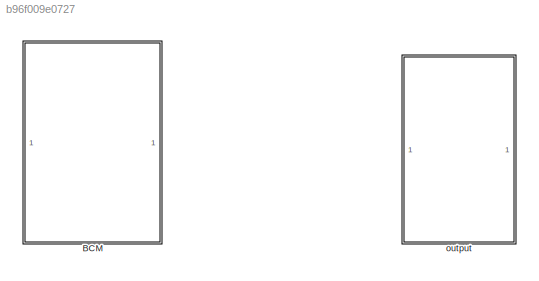
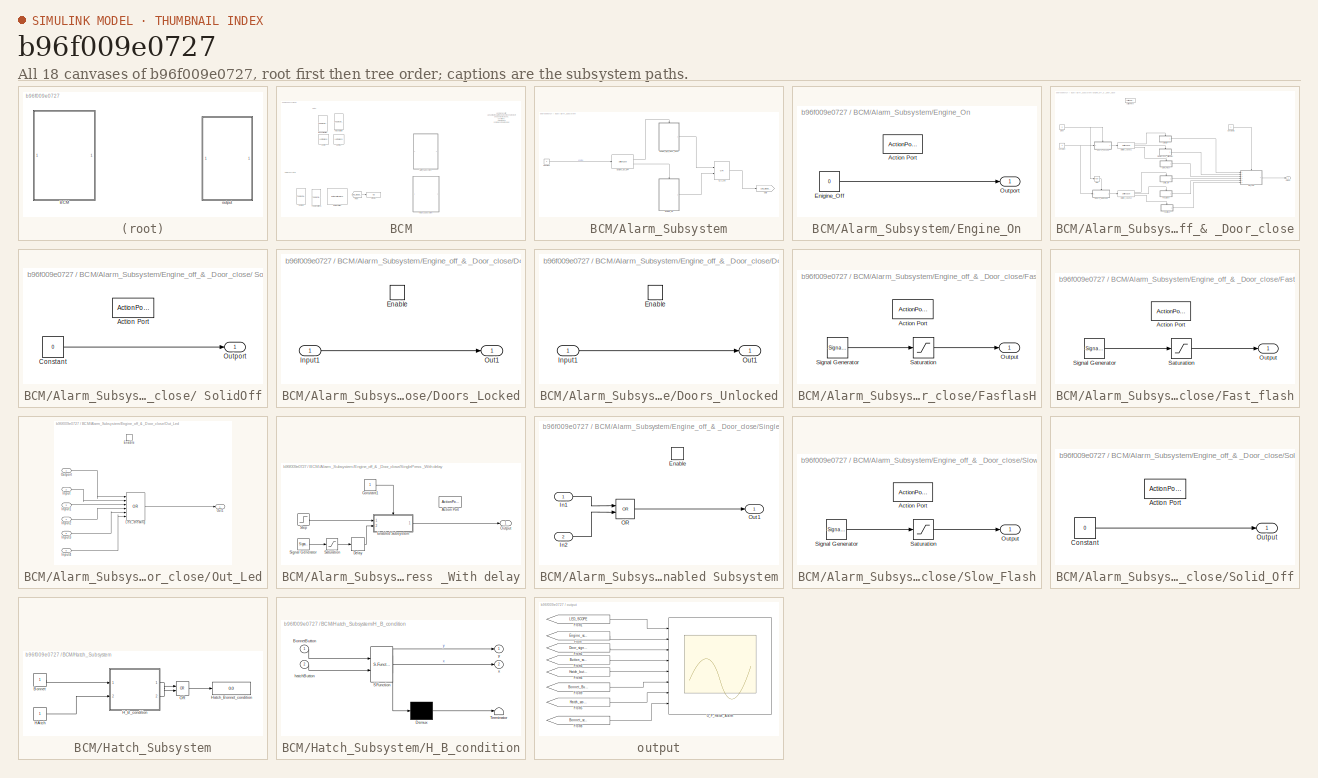
[diagram: thumbnail index - all 18 canvases of the model, root first then tree order]
MODEL slx_b96f009e0727
KIND model
CONFIG AbsTol = auto
CONFIG EnableMultiTasking = off
CONFIG FixedStep = auto
CONFIG MaxStep = auto
CONFIG MinStep = auto
CONFIG RelTol = 1e-3
CONFIG SampleTimeConstraint = Unconstrained
CONFIG SolverName = VariableStepAuto
CONFIG StartTime = 0.0
CONFIG StopTime = inf
BLOCK [SubSystem] BCM
  Ports = []
  RequestExecContextInheritance = off
BLOCK [SubSystem] BCM/Alarm_Subsystem
  Ports = []
  RequestExecContextInheritance = off
BLOCK [Constant] BCM/Alarm_Subsystem/Constant
  Value = 0
BLOCK [SubSystem] BCM/Alarm_Subsystem/Engine_On
  Ports = [0, 1, 0, 0, 0, 0, 0, 1]
  RequestExecContextInheritance = off
  TreatAsAtomicUnit = on
BLOCK [ActionPort] BCM/Alarm_Subsystem/Engine_On/Action Port
  ActionPortLabel = case [ 1 ]:
BLOCK [Constant] BCM/Alarm_Subsystem/Engine_On/Enigine_Off
  Value = 0
BLOCK [Outport] BCM/Alarm_Subsystem/Engine_On/Outport
BLOCK [SwitchCase] BCM/Alarm_Subsystem/Engine_On_OFF
  CaseConditions = {0,1}
  Ports = [1, 2]
  ShowDefaultCase = off
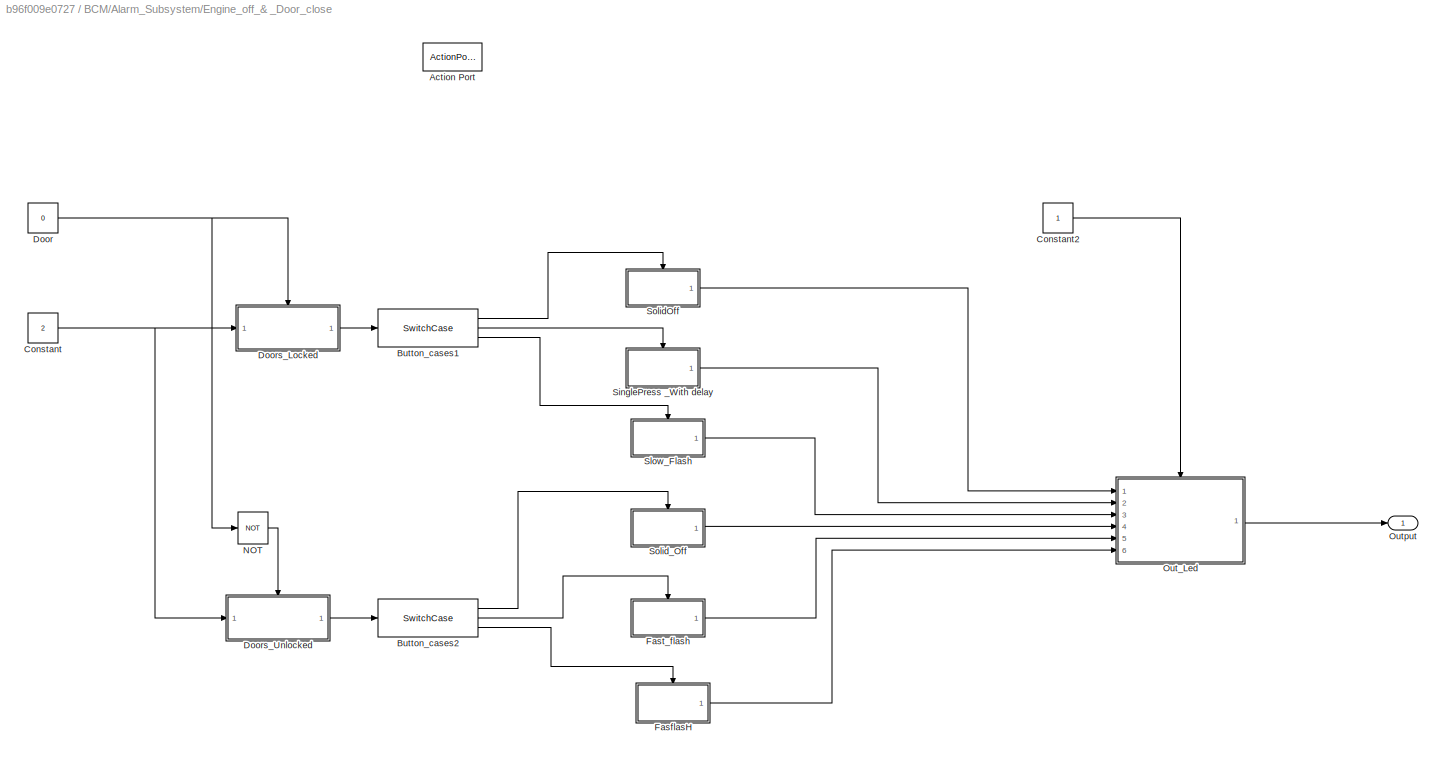
BLOCK [SubSystem] BCM/Alarm_Subsystem/Engine_off_& _Door_close
  Ports = [0, 1, 0, 0, 0, 0, 0, 1]
  RequestExecContextInheritance = off
  TreatAsAtomicUnit = on
BLOCK [SubSystem] BCM/Alarm_Subsystem/Engine_off_& _Door_close/ SolidOff
  Ports = [0, 1, 0, 0, 0, 0, 0, 1]
  RequestExecContextInheritance = off
  TreatAsAtomicUnit = on
BLOCK [ActionPort] BCM/Alarm_Subsystem/Engine_off_& _Door_close/ SolidOff/Action Port
  ActionPortLabel = case [ 0 ]:
BLOCK [Constant] BCM/Alarm_Subsystem/Engine_off_& _Door_close/ SolidOff/Constant
  Value = 0
BLOCK [Outport] BCM/Alarm_Subsystem/Engine_off_& _Door_close/ SolidOff/Outport
BLOCK [ActionPort] BCM/Alarm_Subsystem/Engine_off_& _Door_close/Action Port
  ActionPortLabel = case [ 0 ]:
BLOCK [SwitchCase] BCM/Alarm_Subsystem/Engine_off_& _Door_close/Button_cases1
  CaseConditions = {0,1,2}
  Ports = [1, 3]
  ShowDefaultCase = off
BLOCK [SwitchCase] BCM/Alarm_Subsystem/Engine_off_& _Door_close/Button_cases2
  CaseConditions = {0,1,2}
  Ports = [1, 3]
  ShowDefaultCase = off
BLOCK [Constant] BCM/Alarm_Subsystem/Engine_off_& _Door_close/Constant
  Value = 2
BLOCK [Constant] BCM/Alarm_Subsystem/Engine_off_& _Door_close/Constant2
BLOCK [Constant] BCM/Alarm_Subsystem/Engine_off_& _Door_close/Door
  Value = 0
BLOCK [SubSystem] BCM/Alarm_Subsystem/Engine_off_& _Door_close/Doors_Locked
  Ports = [1, 1, 1]
  RequestExecContextInheritance = off
  TreatAsAtomicUnit = on
BLOCK [EnablePort] BCM/Alarm_Subsystem/Engine_off_& _Door_close/Doors_Locked/Enable
  Ports = []
BLOCK [Inport] BCM/Alarm_Subsystem/Engine_off_& _Door_close/Doors_Locked/Input1
BLOCK [Outport] BCM/Alarm_Subsystem/Engine_off_& _Door_close/Doors_Locked/Out1
BLOCK [SubSystem] BCM/Alarm_Subsystem/Engine_off_& _Door_close/Doors_Unlocked
  Ports = [1, 1, 1]
  RequestExecContextInheritance = off
  TreatAsAtomicUnit = on
BLOCK [EnablePort] BCM/Alarm_Subsystem/Engine_off_& _Door_close/Doors_Unlocked/Enable
  Ports = []
BLOCK [Inport] BCM/Alarm_Subsystem/Engine_off_& _Door_close/Doors_Unlocked/Input1
BLOCK [Outport] BCM/Alarm_Subsystem/Engine_off_& _Door_close/Doors_Unlocked/Out1
BLOCK [SubSystem] BCM/Alarm_Subsystem/Engine_off_& _Door_close/FasflasH
  Ports = [0, 1, 0, 0, 0, 0, 0, 1]
  RequestExecContextInheritance = off
  TreatAsAtomicUnit = on
BLOCK [ActionPort] BCM/Alarm_Subsystem/Engine_off_& _Door_close/FasflasH/Action Port
  ActionPortLabel = case [ 2 ]:
BLOCK [Outport] BCM/Alarm_Subsystem/Engine_off_& _Door_close/FasflasH/Output
BLOCK [Saturate] BCM/Alarm_Subsystem/Engine_off_& _Door_close/FasflasH/Saturation
  LowerLimit = 0
  UpperLimit = 1
BLOCK [SignalGenerator] BCM/Alarm_Subsystem/Engine_off_& _Door_close/FasflasH/Signal Generator
  Ports = [0, 1]
BLOCK [SubSystem] BCM/Alarm_Subsystem/Engine_off_& _Door_close/Fast_flash
  Ports = [0, 1, 0, 0, 0, 0, 0, 1]
  RequestExecContextInheritance = off
  TreatAsAtomicUnit = on
BLOCK [ActionPort] BCM/Alarm_Subsystem/Engine_off_& _Door_close/Fast_flash/Action Port
  ActionPortLabel = case [ 1 ]:
BLOCK [Outport] BCM/Alarm_Subsystem/Engine_off_& _Door_close/Fast_flash/Output
BLOCK [Saturate] BCM/Alarm_Subsystem/Engine_off_& _Door_close/Fast_flash/Saturation
  LowerLimit = 0
  UpperLimit = 1
BLOCK [SignalGenerator] BCM/Alarm_Subsystem/Engine_off_& _Door_close/Fast_flash/Signal Generator
  Ports = [0, 1]
  WaveForm = square
BLOCK [Logic] BCM/Alarm_Subsystem/Engine_off_& _Door_close/NOT
  AllPortsSameDT = off
  IconShape = distinctive
  Operator = NOT
  OutDataTypeStr = boolean
  Ports = [1, 1]
BLOCK [SubSystem] BCM/Alarm_Subsystem/Engine_off_& _Door_close/Out_Led
  Ports = [6, 1, 1]
  RequestExecContextInheritance = off
  TreatAsAtomicUnit = on
BLOCK [EnablePort] BCM/Alarm_Subsystem/Engine_off_& _Door_close/Out_Led/Enable
  Ports = []
BLOCK [Inport] BCM/Alarm_Subsystem/Engine_off_& _Door_close/Out_Led/Input
  Port = 2
BLOCK [Inport] BCM/Alarm_Subsystem/Engine_off_& _Door_close/Out_Led/Input1
  Port = 3
BLOCK [Inport] BCM/Alarm_Subsystem/Engine_off_& _Door_close/Out_Led/Input2
  Port = 4
BLOCK [Inport] BCM/Alarm_Subsystem/Engine_off_& _Door_close/Out_Led/Input3
  Port = 5
BLOCK [Inport] BCM/Alarm_Subsystem/Engine_off_& _Door_close/Out_Led/Input4
  Port = 6
BLOCK [Logic] BCM/Alarm_Subsystem/Engine_off_& _Door_close/Out_Led/Led_checking
  AllPortsSameDT = off
  IconShape = distinctive
  Inputs = 6
  Operator = OR
  OutDataTypeStr = boolean
  Ports = [6, 1]
BLOCK [Outport] BCM/Alarm_Subsystem/Engine_off_& _Door_close/Out_Led/Out1
BLOCK [Inport] BCM/Alarm_Subsystem/Engine_off_& _Door_close/Out_Led/Outport
BLOCK [Outport] BCM/Alarm_Subsystem/Engine_off_& _Door_close/Output
BLOCK [SubSystem] BCM/Alarm_Subsystem/Engine_off_& _Door_close/SinglePress _With delay
  Ports = [0, 1, 0, 0, 0, 0, 0, 1]
  RequestExecContextInheritance = off
  TreatAsAtomicUnit = on
BLOCK [ActionPort] BCM/Alarm_Subsystem/Engine_off_& _Door_close/SinglePress _With delay/Action Port
  ActionPortLabel = case [ 1 ]:
BLOCK [Constant] BCM/Alarm_Subsystem/Engine_off_& _Door_close/SinglePress _With delay/Constant1
BLOCK [Delay] BCM/Alarm_Subsystem/Engine_off_& _Door_close/SinglePress _With delay/Delay
  DelayLength = 90
  InputPortMap = u0
  Ports = [1, 1]
BLOCK [SubSystem] BCM/Alarm_Subsystem/Engine_off_& _Door_close/SinglePress _With delay/Enabled Subsystem
  Ports = [2, 1, 1]
  RequestExecContextInheritance = off
  TreatAsAtomicUnit = on
BLOCK [EnablePort] BCM/Alarm_Subsystem/Engine_off_& _Door_close/SinglePress _With delay/Enabled Subsystem/Enable
  Ports = []
BLOCK [Inport] BCM/Alarm_Subsystem/Engine_off_& _Door_close/SinglePress _With delay/Enabled Subsystem/In1
BLOCK [Inport] BCM/Alarm_Subsystem/Engine_off_& _Door_close/SinglePress _With delay/Enabled Subsystem/In2
  Port = 2
BLOCK [Logic] BCM/Alarm_Subsystem/Engine_off_& _Door_close/SinglePress _With delay/Enabled Subsystem/OR
  AllPortsSameDT = off
  IconShape = distinctive
  Operator = OR
  OutDataTypeStr = boolean
  Ports = [2, 1]
BLOCK [Outport] BCM/Alarm_Subsystem/Engine_off_& _Door_close/SinglePress _With delay/Enabled Subsystem/Out1
BLOCK [Outport] BCM/Alarm_Subsystem/Engine_off_& _Door_close/SinglePress _With delay/Output
BLOCK [Saturate] BCM/Alarm_Subsystem/Engine_off_& _Door_close/SinglePress _With delay/Saturation
  LowerLimit = 0
  UpperLimit = 1
BLOCK [SignalGenerator] BCM/Alarm_Subsystem/Engine_off_& _Door_close/SinglePress _With delay/Signal Generator
  Frequency = 0.5
  Ports = [0, 1]
  WaveForm = square
BLOCK [Step] BCM/Alarm_Subsystem/Engine_off_& _Door_close/SinglePress _With delay/Step
  After = 0
  Before = 1
  SampleTime = 0
  Time = 30
BLOCK [SubSystem] BCM/Alarm_Subsystem/Engine_off_& _Door_close/Slow_Flash
  Ports = [0, 1, 0, 0, 0, 0, 0, 1]
  RequestExecContextInheritance = off
  TreatAsAtomicUnit = on
BLOCK [ActionPort] BCM/Alarm_Subsystem/Engine_off_& _Door_close/Slow_Flash/Action Port
  ActionPortLabel = case [ 2 ]:
BLOCK [Outport] BCM/Alarm_Subsystem/Engine_off_& _Door_close/Slow_Flash/Output
BLOCK [Saturate] BCM/Alarm_Subsystem/Engine_off_& _Door_close/Slow_Flash/Saturation
  LowerLimit = 0
  UpperLimit = 1
BLOCK [SignalGenerator] BCM/Alarm_Subsystem/Engine_off_& _Door_close/Slow_Flash/Signal Generator
  Frequency = 0.5
  Ports = [0, 1]
  WaveForm = square
BLOCK [SubSystem] BCM/Alarm_Subsystem/Engine_off_& _Door_close/Solid_Off
  Ports = [0, 1, 0, 0, 0, 0, 0, 1]
  RequestExecContextInheritance = off
  TreatAsAtomicUnit = on
BLOCK [ActionPort] BCM/Alarm_Subsystem/Engine_off_& _Door_close/Solid_Off/Action Port
  ActionPortLabel = case [ 0 ]:
BLOCK [Constant] BCM/Alarm_Subsystem/Engine_off_& _Door_close/Solid_Off/Constant
  Value = 0
BLOCK [Outport] BCM/Alarm_Subsystem/Engine_off_& _Door_close/Solid_Off/Output
BLOCK [Goto] BCM/Alarm_Subsystem/Goto
  GotoTag = Led_dispaly
  TagVisibility = global
BLOCK [Logic] BCM/Alarm_Subsystem/O_T_Led
  AllPortsSameDT = off
  IconShape = distinctive
  Operator = OR
  OutDataTypeStr = boolean
  Ports = [2, 1]
BLOCK [ToggleSwitchBlock] BCM/BonnetButton
BLOCK [Display] BCM/Display
  Decimation = 1
  Ports = [1]
BLOCK [From] BCM/From
  GotoTag = Led_dispaly
  TagVisibility = global
BLOCK [ToggleSwitchBlock] BCM/HatchButton
BLOCK [SubSystem] BCM/Hatch_Subsystem
  Ports = []
  RequestExecContextInheritance = off
BLOCK [Constant] BCM/Hatch_Subsystem/Bonnet
BLOCK [Constant] BCM/Hatch_Subsystem/HAtch
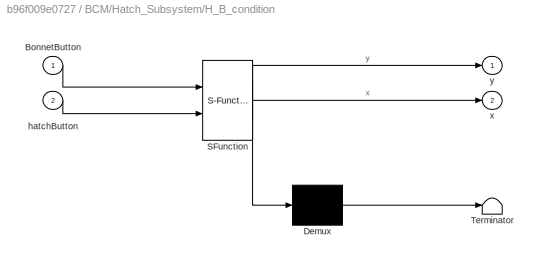
BLOCK [SubSystem] BCM/Hatch_Subsystem/H_B_condition
  ErrorFcn = Stateflow.Translate.translate
  PermitHierarchicalResolution = ExplicitOnly
  Ports = [2, 2]
  RequestExecContextInheritance = off
  SFBlockType = Chart
  TreatAsAtomicUnit = on
BLOCK [Demux] BCM/Hatch_Subsystem/H_B_condition/ Demux 
  Outputs = 1
  Ports = [1, 1]
BLOCK [S-Function] BCM/Hatch_Subsystem/H_B_condition/ SFunction 
  EnableBusSupport = on
  FunctionName = sf_sfun
  PortCounts = [2 3]
  Ports = [2, 3]
  SFcnIsStateOwnerBlock = off
  SFunctionDeploymentMode = off
  Tag = Stateflow S-Function 3
BLOCK [Terminator] BCM/Hatch_Subsystem/H_B_condition/ Terminator 
BLOCK [Inport] BCM/Hatch_Subsystem/H_B_condition/BonnetButton
BLOCK [Inport] BCM/Hatch_Subsystem/H_B_condition/hatchButton
  Port = 2
BLOCK [Outport] BCM/Hatch_Subsystem/H_B_condition/x
  Port = 2
BLOCK [Outport] BCM/Hatch_Subsystem/H_B_condition/y
BLOCK [Display] BCM/Hatch_Subsystem/Hatch_Bonnet_condition
  Decimation = 1
  Ports = [1]
BLOCK [Logic] BCM/Hatch_Subsystem/OR
  AllPortsSameDT = off
  IconShape = distinctive
  Operator = OR
  OutDataTypeStr = boolean
  Ports = [2, 1]
BLOCK [LampBlock] BCM/Lamp
BLOCK [LampBlock] BCM/Lamp1
BLOCK [RotarySwitchBlock] BCM/Rotary Switch
BLOCK [ToggleSwitchBlock] BCM/Toggle Switch1
BLOCK [ToggleSwitchBlock] BCM/engine
BLOCK [SubSystem] output
  Ports = []
  RequestExecContextInheritance = off
BLOCK [From] output/From
  GotoTag = Engine_scope
BLOCK [From] output/From1
  GotoTag = LED_SCOPE
BLOCK [From] output/From2
  GotoTag = Door_signal_Scope
BLOCK [From] output/From3
  GotoTag = Button_scope
BLOCK [From] output/From4
  GotoTag = Hatch_button
BLOCK [From] output/From5
  GotoTag = Hatch_scope
BLOCK [From] output/From8
  GotoTag = Bonnet_scope
BLOCK [From] output/From9
  GotoTag = Bonnet_Button
BLOCK [Scope] output/O_P_Hatch_Alarm
  Floating = off
  NumInputPorts = 8
  Ports = [8]
  ScopeSpecificationString = Simulink.scopes.TimeScopeBlockCfg('CurrentConfiguration', extmgr.ConfigurationSet(extmgr.Configuration('Core','General UI',true),extmgr.Configuration('Core','Source UI',true),extmgr.Configuration('Sources','WiredSimulink',true),extmgr.Configuration('Visuals','Time Domain',true,'SerializedDisplays',{struct('MinYLimReal','-0.08882','MaxYLimReal','0.87678','YLabelReal','','MinYLimMag','0.00000','MaxY...<+6228ch>
ANNOTATION BCM: VehicleSecurity: 1.Enabling the alarm only when the engine is off and doors are closed. Conditions: a.SlowFlash b.Solid when there is delay c.FastFlash when RKE is pressed twice d.Solid and slow flash when RKE is pressed once
ANNOTATION BCM: Alarm subsystem
ANNOTATION BCM: Hatch
LINE BCM/Alarm_Subsystem/Constant:1 -> BCM/Alarm_Subsystem/Engine_On_OFF:1
LINE BCM/Alarm_Subsystem/Engine_On/Enigine_Off:1 -> BCM/Alarm_Subsystem/Engine_On/Outport:1
LINE BCM/Alarm_Subsystem/Engine_On:1 -> BCM/Alarm_Subsystem/O_T_Led:2
LINE BCM/Alarm_Subsystem/Engine_On_OFF:1 -> BCM/Alarm_Subsystem/Engine_off_& _Door_close:ifaction
LINE BCM/Alarm_Subsystem/Engine_On_OFF:2 -> BCM/Alarm_Subsystem/Engine_On:ifaction
LINE BCM/Alarm_Subsystem/Engine_off_& _Door_close/ SolidOff/Constant:1 -> BCM/Alarm_Subsystem/Engine_off_& _Door_close/ SolidOff/Outport:1
LINE BCM/Alarm_Subsystem/Engine_off_& _Door_close/ SolidOff:1 -> BCM/Alarm_Subsystem/Engine_off_& _Door_close/Out_Led:1
LINE BCM/Alarm_Subsystem/Engine_off_& _Door_close/Button_cases1:1 -> BCM/Alarm_Subsystem/Engine_off_& _Door_close/ SolidOff:ifaction
LINE BCM/Alarm_Subsystem/Engine_off_& _Door_close/Button_cases1:2 -> BCM/Alarm_Subsystem/Engine_off_& _Door_close/SinglePress _With delay:ifaction
LINE BCM/Alarm_Subsystem/Engine_off_& _Door_close/Button_cases1:3 -> BCM/Alarm_Subsystem/Engine_off_& _Door_close/Slow_Flash:ifaction
LINE BCM/Alarm_Subsystem/Engine_off_& _Door_close/Button_cases2:1 -> BCM/Alarm_Subsystem/Engine_off_& _Door_close/Solid_Off:ifaction
LINE BCM/Alarm_Subsystem/Engine_off_& _Door_close/Button_cases2:2 -> BCM/Alarm_Subsystem/Engine_off_& _Door_close/Fast_flash:ifaction
LINE BCM/Alarm_Subsystem/Engine_off_& _Door_close/Button_cases2:3 -> BCM/Alarm_Subsystem/Engine_off_& _Door_close/FasflasH:ifaction
LINE BCM/Alarm_Subsystem/Engine_off_& _Door_close/Constant2:1 -> BCM/Alarm_Subsystem/Engine_off_& _Door_close/Out_Led:enable
NET BCM/Alarm_Subsystem/Engine_off_& _Door_close/Constant:1 -> BCM/Alarm_Subsystem/Engine_off_& _Door_close/Doors_Locked:1, BCM/Alarm_Subsystem/Engine_off_& _Door_close/Doors_Unlocked:1
NET BCM/Alarm_Subsystem/Engine_off_& _Door_close/Door:1 -> BCM/Alarm_Subsystem/Engine_off_& _Door_close/Doors_Locked:enable, BCM/Alarm_Subsystem/Engine_off_& _Door_close/NOT:1
LINE BCM/Alarm_Subsystem/Engine_off_& _Door_close/Doors_Locked/Input1:1 -> BCM/Alarm_Subsystem/Engine_off_& _Door_close/Doors_Locked/Out1:1
LINE BCM/Alarm_Subsystem/Engine_off_& _Door_close/Doors_Locked:1 -> BCM/Alarm_Subsystem/Engine_off_& _Door_close/Button_cases1:1
LINE BCM/Alarm_Subsystem/Engine_off_& _Door_close/Doors_Unlocked/Input1:1 -> BCM/Alarm_Subsystem/Engine_off_& _Door_close/Doors_Unlocked/Out1:1
LINE BCM/Alarm_Subsystem/Engine_off_& _Door_close/Doors_Unlocked:1 -> BCM/Alarm_Subsystem/Engine_off_& _Door_close/Button_cases2:1
LINE BCM/Alarm_Subsystem/Engine_off_& _Door_close/FasflasH/Saturation:1 -> BCM/Alarm_Subsystem/Engine_off_& _Door_close/FasflasH/Output:1
LINE BCM/Alarm_Subsystem/Engine_off_& _Door_close/FasflasH/Signal Generator:1 -> BCM/Alarm_Subsystem/Engine_off_& _Door_close/FasflasH/Saturation:1
LINE BCM/Alarm_Subsystem/Engine_off_& _Door_close/FasflasH:1 -> BCM/Alarm_Subsystem/Engine_off_& _Door_close/Out_Led:6
LINE BCM/Alarm_Subsystem/Engine_off_& _Door_close/Fast_flash/Saturation:1 -> BCM/Alarm_Subsystem/Engine_off_& _Door_close/Fast_flash/Output:1
LINE BCM/Alarm_Subsystem/Engine_off_& _Door_close/Fast_flash/Signal Generator:1 -> BCM/Alarm_Subsystem/Engine_off_& _Door_close/Fast_flash/Saturation:1
LINE BCM/Alarm_Subsystem/Engine_off_& _Door_close/Fast_flash:1 -> BCM/Alarm_Subsystem/Engine_off_& _Door_close/Out_Led:5
LINE BCM/Alarm_Subsystem/Engine_off_& _Door_close/NOT:1 -> BCM/Alarm_Subsystem/Engine_off_& _Door_close/Doors_Unlocked:enable
LINE BCM/Alarm_Subsystem/Engine_off_& _Door_close/Out_Led/Input1:1 -> BCM/Alarm_Subsystem/Engine_off_& _Door_close/Out_Led/Led_checking:3
LINE BCM/Alarm_Subsystem/Engine_off_& _Door_close/Out_Led/Input2:1 -> BCM/Alarm_Subsystem/Engine_off_& _Door_close/Out_Led/Led_checking:4
LINE BCM/Alarm_Subsystem/Engine_off_& _Door_close/Out_Led/Input3:1 -> BCM/Alarm_Subsystem/Engine_off_& _Door_close/Out_Led/Led_checking:5
LINE BCM/Alarm_Subsystem/Engine_off_& _Door_close/Out_Led/Input4:1 -> BCM/Alarm_Subsystem/Engine_off_& _Door_close/Out_Led/Led_checking:6
LINE BCM/Alarm_Subsystem/Engine_off_& _Door_close/Out_Led/Input:1 -> BCM/Alarm_Subsystem/Engine_off_& _Door_close/Out_Led/Led_checking:2
LINE BCM/Alarm_Subsystem/Engine_off_& _Door_close/Out_Led/Led_checking:1 -> BCM/Alarm_Subsystem/Engine_off_& _Door_close/Out_Led/Out1:1
LINE BCM/Alarm_Subsystem/Engine_off_& _Door_close/Out_Led/Outport:1 -> BCM/Alarm_Subsystem/Engine_off_& _Door_close/Out_Led/Led_checking:1
LINE BCM/Alarm_Subsystem/Engine_off_& _Door_close/Out_Led:1 -> BCM/Alarm_Subsystem/Engine_off_& _Door_close/Output:1
LINE BCM/Alarm_Subsystem/Engine_off_& _Door_close/SinglePress _With delay/Constant1:1 -> BCM/Alarm_Subsystem/Engine_off_& _Door_close/SinglePress _With delay/Enabled Subsystem:enable
LINE BCM/Alarm_Subsystem/Engine_off_& _Door_close/SinglePress _With delay/Delay:1 -> BCM/Alarm_Subsystem/Engine_off_& _Door_close/SinglePress _With delay/Enabled Subsystem:2
LINE BCM/Alarm_Subsystem/Engine_off_& _Door_close/SinglePress _With delay/Enabled Subsystem/In1:1 -> BCM/Alarm_Subsystem/Engine_off_& _Door_close/SinglePress _With delay/Enabled Subsystem/OR:1
LINE BCM/Alarm_Subsystem/Engine_off_& _Door_close/SinglePress _With delay/Enabled Subsystem/In2:1 -> BCM/Alarm_Subsystem/Engine_off_& _Door_close/SinglePress _With delay/Enabled Subsystem/OR:2
LINE BCM/Alarm_Subsystem/Engine_off_& _Door_close/SinglePress _With delay/Enabled Subsystem/OR:1 -> BCM/Alarm_Subsystem/Engine_off_& _Door_close/SinglePress _With delay/Enabled Subsystem/Out1:1
LINE BCM/Alarm_Subsystem/Engine_off_& _Door_close/SinglePress _With delay/Enabled Subsystem:1 -> BCM/Alarm_Subsystem/Engine_off_& _Door_close/SinglePress _With delay/Output:1
LINE BCM/Alarm_Subsystem/Engine_off_& _Door_close/SinglePress _With delay/Saturation:1 -> BCM/Alarm_Subsystem/Engine_off_& _Door_close/SinglePress _With delay/Delay:1
LINE BCM/Alarm_Subsystem/Engine_off_& _Door_close/SinglePress _With delay/Signal Generator:1 -> BCM/Alarm_Subsystem/Engine_off_& _Door_close/SinglePress _With delay/Saturation:1
LINE BCM/Alarm_Subsystem/Engine_off_& _Door_close/SinglePress _With delay/Step:1 -> BCM/Alarm_Subsystem/Engine_off_& _Door_close/SinglePress _With delay/Enabled Subsystem:1
LINE BCM/Alarm_Subsystem/Engine_off_& _Door_close/SinglePress _With delay:1 -> BCM/Alarm_Subsystem/Engine_off_& _Door_close/Out_Led:2
LINE BCM/Alarm_Subsystem/Engine_off_& _Door_close/Slow_Flash/Saturation:1 -> BCM/Alarm_Subsystem/Engine_off_& _Door_close/Slow_Flash/Output:1
LINE BCM/Alarm_Subsystem/Engine_off_& _Door_close/Slow_Flash/Signal Generator:1 -> BCM/Alarm_Subsystem/Engine_off_& _Door_close/Slow_Flash/Saturation:1
LINE BCM/Alarm_Subsystem/Engine_off_& _Door_close/Slow_Flash:1 -> BCM/Alarm_Subsystem/Engine_off_& _Door_close/Out_Led:3
LINE BCM/Alarm_Subsystem/Engine_off_& _Door_close/Solid_Off/Constant:1 -> BCM/Alarm_Subsystem/Engine_off_& _Door_close/Solid_Off/Output:1
LINE BCM/Alarm_Subsystem/Engine_off_& _Door_close/Solid_Off:1 -> BCM/Alarm_Subsystem/Engine_off_& _Door_close/Out_Led:4
LINE BCM/Alarm_Subsystem/Engine_off_& _Door_close:1 -> BCM/Alarm_Subsystem/O_T_Led:1
LINE BCM/Alarm_Subsystem/O_T_Led:1 -> BCM/Alarm_Subsystem/Goto:1
LINE BCM/From:1 -> BCM/Display:1
LINE BCM/Hatch_Subsystem/Bonnet:1 -> BCM/Hatch_Subsystem/H_B_condition:1
LINE BCM/Hatch_Subsystem/HAtch:1 -> BCM/Hatch_Subsystem/H_B_condition:2
LINE BCM/Hatch_Subsystem/H_B_condition:1 -> BCM/Hatch_Subsystem/OR:1
LINE BCM/Hatch_Subsystem/H_B_condition:2 -> BCM/Hatch_Subsystem/OR:2
LINE BCM/Hatch_Subsystem/OR:1 -> BCM/Hatch_Subsystem/Hatch_Bonnet_condition:1
LINE output/From1:1 -> output/O_P_Hatch_Alarm:1
LINE output/From2:1 -> output/O_P_Hatch_Alarm:3
LINE output/From3:1 -> output/O_P_Hatch_Alarm:4
LINE output/From4:1 -> output/O_P_Hatch_Alarm:5
LINE output/From5:1 -> output/O_P_Hatch_Alarm:7
LINE output/From8:1 -> output/O_P_Hatch_Alarm:8
LINE output/From9:1 -> output/O_P_Hatch_Alarm:6
LINE output/From:1 -> output/O_P_Hatch_Alarm:2
note: NET lines group one-source signal fan-out (src -> all destinations, sorted); 1:1 wires keep LINE
CHART BCM/Hatch_Subsystem/H_B_condition states=2 transitions=3
  STATE_LABEL 'Hatch\nentry:\nif hatchButton==1\n    y=1;\nend\nif BonnetButton==1\n    x=1;\nend\n'
  STATE_LABEL 'Hatch_off\nentry:\nif hatchButton==0\n    y=0;\nend\nif BonnetButton==0\n    x=0;\nend\n'
CHART  states=0 transitions=0
